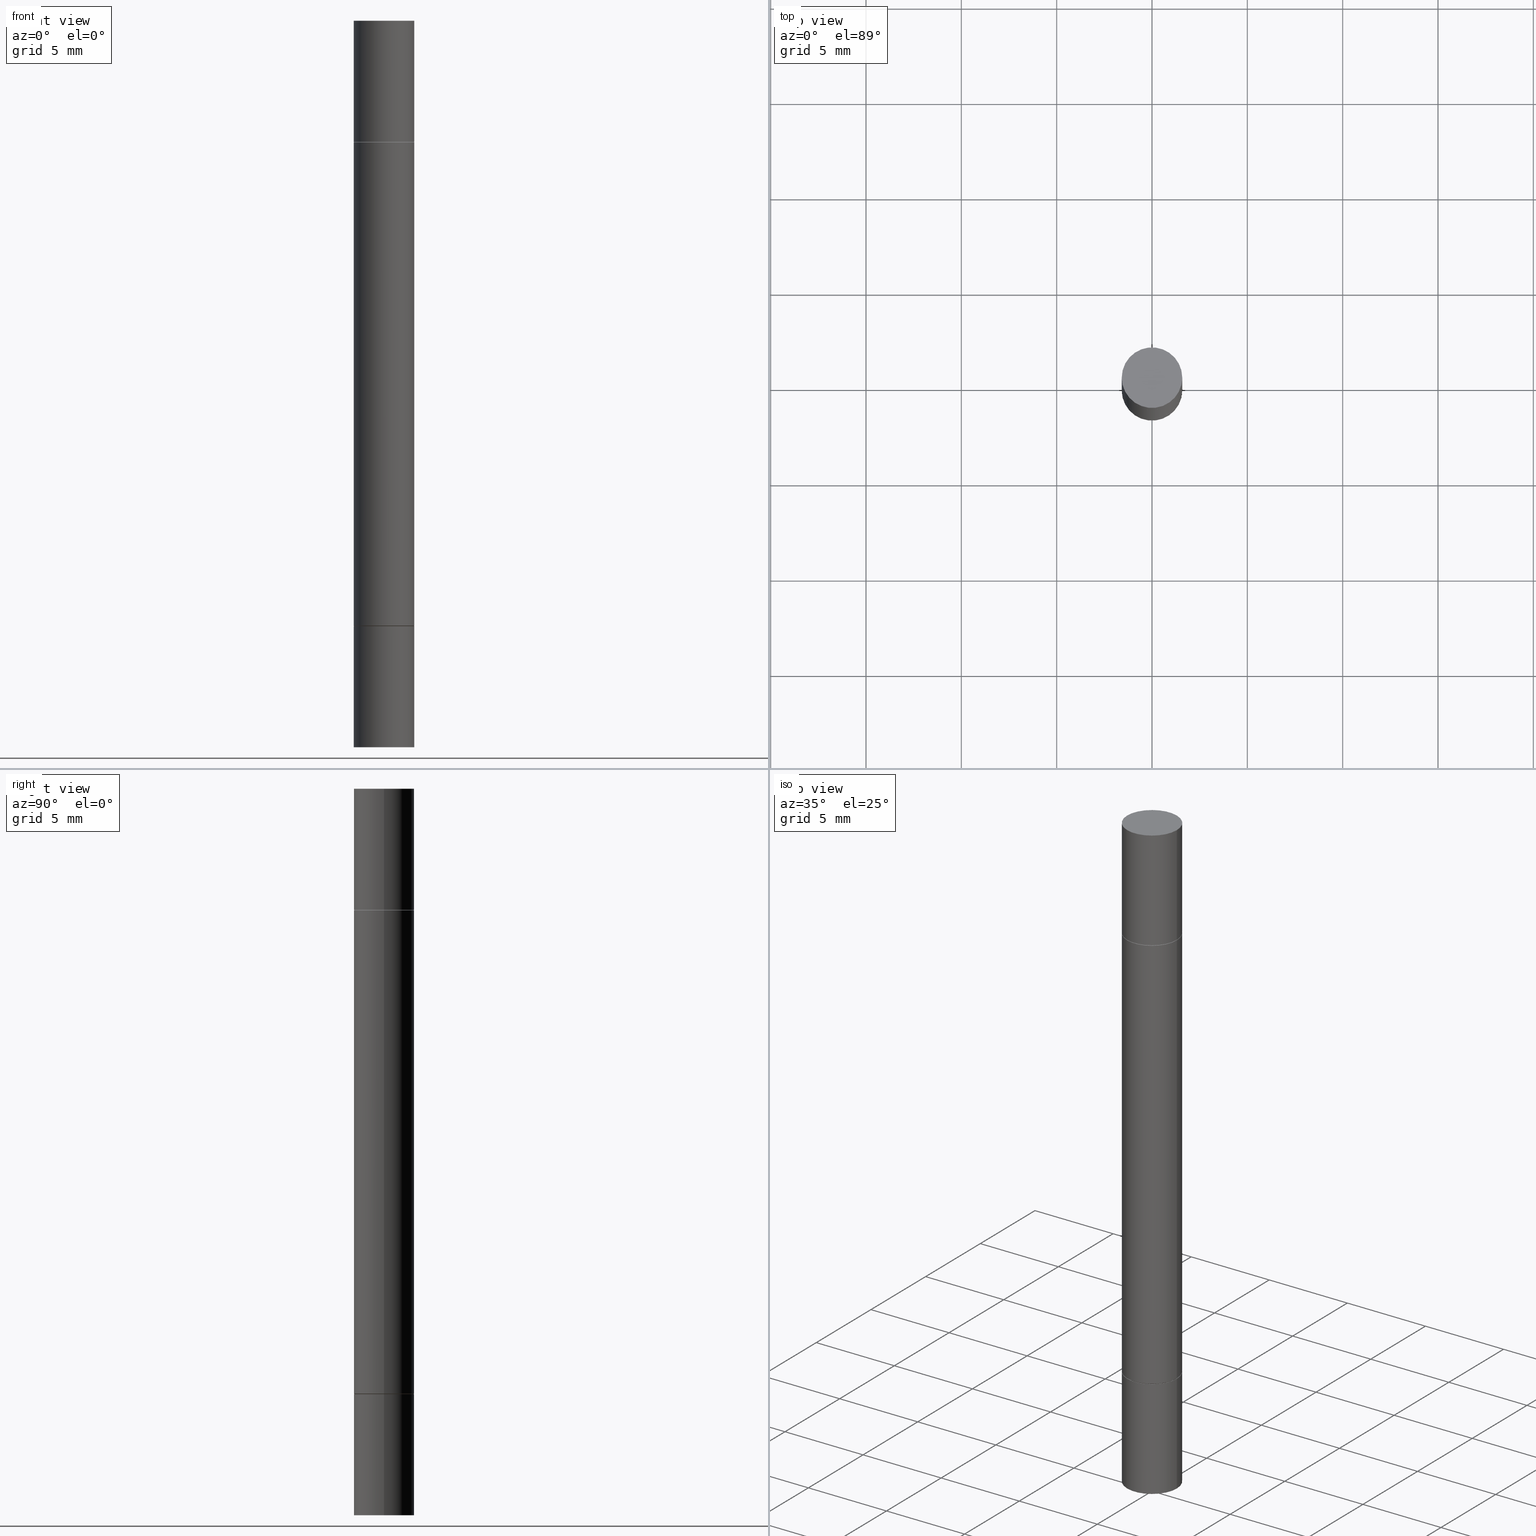
[diagram: canonical four-view strip — front | top / right | iso, engineering-drawing reading convention]
A machine part, canonical four-view strip (front | top / right | iso — engineering-drawing reading convention). The complete STEP part file that produces these views, byte-faithful:
ISO-10303-21;
HEADER;
FILE_DESCRIPTION (( 'STEP AP203' ),
    '1' );
FILE_NAME ('31513.STEP',
    '2024-03-04T15:42:23',
    ( '' ),
    ( '' ),
    'SwSTEP 2.0',
    'SolidWorks 2023',
    '' );
FILE_SCHEMA (( 'CONFIG_CONTROL_DESIGN' ));
ENDSEC;

DATA;
#1 = CARTESIAN_POINT ( 'NONE',  ( 0.06150000000000001299, -1.301618003034187616E-15, -0.2499999999999998057 ) ) ;
#2 = PLANE ( 'NONE',  #371 ) ;
#3 = EDGE_CURVE ( 'NONE', #494, #337, #347, .T. ) ;
#4 = DIRECTION ( 'NONE',  ( 1.000000000000000000, -6.982962677686261189E-15, 0.000000000000000000 ) ) ;
#5 = ORIENTED_EDGE ( 'NONE', *, *, #157, .T. ) ;
#6 = CARTESIAN_POINT ( 'NONE',  ( 3.054390538925235704E-29, -8.756586887680336100E-16, -0.2509999999999998899 ) ) ;
#7 = CARTESIAN_POINT ( 'NONE',  ( -0.06249999999999996531, -4.809497687935452578E-15, -1.499999999999999778 ) ) ;
#8 = CARTESIAN_POINT ( 'NONE',  ( 0.000000000000000000, -5.238278812796173300E-15, -1.499999999999999778 ) ) ;
#9 = CARTESIAN_POINT ( 'NONE',  ( 0.06250000000000001388, -4.800786840909324141E-15, -1.250000000000000000 ) ) ;
#10 = ORIENTED_EDGE ( 'NONE', *, *, #671, .T. ) ;
#11 = CARTESIAN_POINT ( 'NONE',  ( 3.056836007731421306E-29, -4.364351673553932471E-15, -1.250000000000000000 ) ) ;
#12 = FACE_OUTER_BOUND ( 'NONE', #59, .T. ) ;
#13 = DIRECTION ( 'NONE',  ( 1.000000000000000000, -6.982962677686267499E-15, 0.000000000000000000 ) ) ;
#14 = CARTESIAN_POINT ( 'NONE',  ( 3.056836007731421306E-29, -4.364351673553932471E-15, -1.250000000000000000 ) ) ;
#15 = FACE_OUTER_BOUND ( 'NONE', #477, .T. ) ;
#16 = CARTESIAN_POINT ( 'NONE',  ( 0.06249999999999996531, -2.183570013805587378E-15, -0.7499999999999998890 ) ) ;
#17 = LOCAL_TIME ( 10, 42, 23.00000000000000000, #443 ) ;
#18 = PRODUCT_DEFINITION ( 'UNKNOWN', '', #629, #114 ) ;
#19 = CIRCLE ( 'NONE', #389, 0.06250000000000005551 ) ;
#20 = DIRECTION ( 'NONE',  ( 1.000000000000000000, -6.982962677686264344E-15, 0.000000000000000000 ) ) ;
#21 = DIRECTION ( 'NONE',  ( -2.445468806185136877E-29, -3.492890411551753071E-15, -1.000000000000000000 ) ) ;
#22 = LINE ( 'NONE', #621, #525 ) ;
#23 = ORIENTED_EDGE ( 'NONE', *, *, #214, .T. ) ;
#24 = APPROVAL_DATE_TIME ( #345, #390 ) ;
#25 = ORIENTED_EDGE ( 'NONE', *, *, #496, .T. ) ;
#26 = AXIS2_PLACEMENT_3D ( 'NONE', #586, #584, #326 ) ;
#27 = VECTOR ( 'NONE', #264, 39.37007874015748143 ) ;
#28 = PERSON_AND_ORGANIZATION ( #266, #609 ) ;
#29 = CARTESIAN_POINT ( 'NONE',  ( 3.668203209277704895E-29, 1.056804531456312920E-18, 2.731847993664263218E-16 ) ) ;
#30 = ORIENTED_EDGE ( 'NONE', *, *, #669, .F. ) ;
#31 = DIRECTION ( 'NONE',  ( -2.445468806185136597E-29, 3.491481338843145583E-15, 1.000000000000000000 ) ) ;
#32 = SECURITY_CLASSIFICATION_LEVEL ( 'unclassified' ) ;
#33 = DIRECTION ( 'NONE',  ( -2.445468806185136597E-29, -3.492890411551752677E-15, -1.000000000000000000 ) ) ;
#34 = EDGE_CURVE ( 'NONE', #662, #442, #437, .T. ) ;
#35 = CALENDAR_DATE ( 2024, 4, 3 ) ;
#36 = DIRECTION ( 'NONE',  ( 2.445468806185136597E-29, 3.492890411551752677E-15, 1.000000000000000000 ) ) ;
#37 = ADVANCED_FACE ( 'NONE', ( #123 ), #279, .T. ) ;
#38 = APPROVAL_PERSON_ORGANIZATION ( #302, #60, #351 ) ;
#39 = CARTESIAN_POINT ( 'NONE',  ( 1.834101604638852167E-29, -2.618611004132358694E-15, -0.7499999999999998890 ) ) ;
#40 = AXIS2_PLACEMENT_3D ( 'NONE', #641, #170, #481 ) ;
#41 = CONICAL_SURFACE ( 'NONE', #538, 0.06150000000000001299, 0.7853981633974311816 ) ;
#42 = CARTESIAN_POINT ( 'NONE',  ( 0.06250000000000001388, -1.308600965711874025E-15, -0.2499999999999998057 ) ) ;
#43 = ORIENTED_EDGE ( 'NONE', *, *, #217, .F. ) ;
#44 = CARTESIAN_POINT ( 'NONE',  ( -0.06250000000000005551, -4.468775639073129860E-16, -0.2509999999999998899 ) ) ;
#45 = ORIENTED_EDGE ( 'NONE', *, *, #220, .F. ) ;
#46 = CARTESIAN_POINT ( 'NONE',  ( 0.000000000000000000, -5.238278812796173300E-15, -1.499999999999999778 ) ) ;
#47 = ORIENTED_EDGE ( 'NONE', *, *, #110, .F. ) ;
#48 = CLOSED_SHELL ( 'NONE', ( #577, #653, #78, #52 ) ) ;
#49 = AXIS2_PLACEMENT_3D ( 'NONE', #356, #458, #454 ) ;
#50 = DIRECTION ( 'NONE',  ( -0.000000000000000000, -3.492185875197449130E-15, -1.000000000000000000 ) ) ;
#51 = ADVANCED_FACE ( 'NONE', ( #15 ), #549, .T. ) ;
#52 = ADVANCED_FACE ( 'NONE', ( #141 ), #560, .T. ) ;
#53 = DIRECTION ( 'NONE',  ( 1.000000000000000000, -6.982962677686264344E-15, 0.000000000000000000 ) ) ;
#54 = FACE_OUTER_BOUND ( 'NONE', #642, .T. ) ;
#55 = ORIENTED_EDGE ( 'NONE', *, *, #334, .T. ) ;
#56 = DIRECTION ( 'NONE',  ( 1.000000000000000000, -6.982962677686265922E-15, 9.839502134516470631E-33 ) ) ;
#57 = ADVANCED_FACE ( 'NONE', ( #179 ), #597, .T. ) ;
#58 = DIRECTION ( 'NONE',  ( -2.445468806185136877E-29, -3.492890411551753071E-15, -1.000000000000000000 ) ) ;
#59 = EDGE_LOOP ( 'NONE', ( #292, #446 ) ) ;
#60 = APPROVAL ( #396, 'UNSPECIFIED' ) ;
#61 = CARTESIAN_POINT ( 'NONE',  ( -0.06250000000000005551, -2.189829879271635210E-15, -1.248999999999999888 ) ) ;
#62 = EDGE_CURVE ( 'NONE', #91, #165, #22, .T. ) ;
#63 =( GEOMETRIC_REPRESENTATION_CONTEXT ( 3 ) GLOBAL_UNCERTAINTY_ASSIGNED_CONTEXT ( ( #226 ) ) GLOBAL_UNIT_ASSIGNED_CONTEXT ( ( #335, #112, #76 ) ) REPRESENTATION_CONTEXT ( 'NONE', 'WORKASPACE' ) );
#64 = LENGTH_MEASURE_WITH_UNIT ( LENGTH_MEASURE( 0.02539999999999999897 ), #127 );
#65 = AXIS2_PLACEMENT_3D ( 'NONE', #14, #531, #269 ) ;
#66 = CIRCLE ( 'NONE', #440, 0.06250000000000005551 ) ;
#67 = DIRECTION ( 'NONE',  ( 1.000000000000000000, -6.982962677686269077E-15, 0.000000000000000000 ) ) ;
#68 = LINE ( 'NONE', #174, #184 ) ;
#69 = ORIENTED_EDGE ( 'NONE', *, *, #322, .F. ) ;
#70 = ADVANCED_FACE ( 'NONE', ( #513 ), #568, .T. ) ;
#71 = DIRECTION ( 'NONE',  ( 2.445468806185136597E-29, 3.492890411551752677E-15, 1.000000000000000000 ) ) ;
#72 = ADVANCED_FACE ( 'NONE', ( #426 ), #587, .F. ) ;
#73 = FACE_OUTER_BOUND ( 'NONE', #536, .T. ) ;
#74 = CARTESIAN_POINT ( 'NONE',  ( -0.06150000000000001299, -4.502451714935327518E-16, -0.2499999999999998057 ) ) ;
#75 = DIRECTION ( 'NONE',  ( 2.438088387897959769E-29, 3.492890411551753071E-15, 1.000000000000000000 ) ) ;
#76 =( NAMED_UNIT ( * ) SI_UNIT ( $, .STERADIAN. ) SOLID_ANGLE_UNIT ( ) );
#77 = CIRCLE ( 'NONE', #502, 0.06150000000000001299 ) ;
#78 = ADVANCED_FACE ( 'NONE', ( #12 ), #459, .F. ) ;
#79 = ORIENTED_EDGE ( 'NONE', *, *, #303, .T. ) ;
#80 = DIRECTION ( 'NONE',  ( 1.000000000000000000, -6.982962677686268288E-15, 0.000000000000000000 ) ) ;
#81 = EDGE_CURVE ( 'NONE', #229, #574, #517, .T. ) ;
#82 = ADVANCED_FACE ( 'NONE', ( #313 ), #108, .T. ) ;
#83 = PERSON_AND_ORGANIZATION_ROLE ( 'creator' ) ;
#84 = FACE_OUTER_BOUND ( 'NONE', #163, .T. ) ;
#85 = ORIENTED_EDGE ( 'NONE', *, *, #312, .F. ) ;
#86 = CARTESIAN_POINT ( 'NONE',  ( 3.056836007731421306E-29, -8.721657983564820597E-16, -0.2499999999999998057 ) ) ;
#87 = DIRECTION ( 'NONE',  ( 1.000000000000000000, -6.982962677686269077E-15, 0.000000000000000000 ) ) ;
#88 = ORIENTED_EDGE ( 'NONE', *, *, #263, .F. ) ;
#89 = PLANE ( 'NONE',  #49 ) ;
#90 = ADVANCED_FACE ( 'NONE', ( #120 ), #492, .T. ) ;
#91 = VERTEX_POINT ( 'NONE', #423 ) ;
#92 = LINE ( 'NONE', #74, #468 ) ;
#93 = AXIS2_PLACEMENT_3D ( 'NONE', #528, #633, #4 ) ;
#94 = DIRECTION ( 'NONE',  ( -2.445468806185136597E-29, 3.491481338843145583E-15, 1.000000000000000000 ) ) ;
#95 = DIRECTION ( 'NONE',  ( -0.7071067811865353603, 7.493145998870309984E-15, 0.7071067811865595631 ) ) ;
#96 = CC_DESIGN_DATE_AND_TIME_ASSIGNMENT ( #239, #659, ( #101 ) ) ;
#97 = DIRECTION ( 'NONE',  ( 1.000000000000000000, -6.982962677686264344E-15, 0.000000000000000000 ) ) ;
#98 = ORIENTED_EDGE ( 'NONE', *, *, #344, .T. ) ;
#99 = DIRECTION ( 'NONE',  ( 2.445468806185136597E-29, 3.492890411551752677E-15, 1.000000000000000000 ) ) ;
#100 = CARTESIAN_POINT ( 'NONE',  ( 3.056836007731421306E-29, -4.364351673553932471E-15, -1.250000000000000000 ) ) ;
#101 = SECURITY_CLASSIFICATION ( '', '', #32 ) ;
#102 = CLOSED_SHELL ( 'NONE', ( #397, #37, #72, #375 ) ) ;
#103 = AXIS2_PLACEMENT_3D ( 'NONE', #413, #310, #495 ) ;
#104 = CYLINDRICAL_SURFACE ( 'NONE', #93, 0.06250000000000001388 ) ;
#105 = ORIENTED_EDGE ( 'NONE', *, *, #258, .F. ) ;
#106 = CARTESIAN_POINT ( 'NONE',  ( 3.056836007731421306E-29, -8.721657983564820597E-16, -0.2499999999999998057 ) ) ;
#107 = EDGE_CURVE ( 'NONE', #664, #448, #579, .T. ) ;
#108 = CYLINDRICAL_SURFACE ( 'NONE', #236, 0.06249999999999996531 ) ;
#109 = CARTESIAN_POINT ( 'NONE',  ( -0.06250000000000001388, -4.356697631059263102E-15, -1.500000000000000222 ) ) ;
#110 = EDGE_CURVE ( 'NONE', #672, #384, #284, .T. ) ;
#111 = PLANE ( 'NONE',  #200 ) ;
#112 =( NAMED_UNIT ( * ) PLANE_ANGLE_UNIT ( ) SI_UNIT ( $, .RADIAN. ) );
#113 = ORIENTED_EDGE ( 'NONE', *, *, #598, .F. ) ;
#114 = DESIGN_CONTEXT ( 'detailed design', #291, 'design' ) ;
#115 = DIRECTION ( 'NONE',  ( 1.000000000000000000, -6.982962677686261189E-15, 0.000000000000000000 ) ) ;
#116 = CARTESIAN_POINT ( 'NONE',  ( 4.364351673554222871E-16, 0.06249999999999914652, -0.2500000000000000555 ) ) ;
#117 = ADVANCED_FACE ( 'NONE', ( #376 ), #453, .T. ) ;
#118 = AXIS2_PLACEMENT_3D ( 'NONE', #476, #370, #539 ) ;
#119 = AXIS2_PLACEMENT_3D ( 'NONE', #252, #490, #20 ) ;
#120 = FACE_OUTER_BOUND ( 'NONE', #608, .T. ) ;
#121 = LINE ( 'NONE', #651, #316 ) ;
#122 = LINE ( 'NONE', #343, #581 ) ;
#123 = FACE_OUTER_BOUND ( 'NONE', #195, .T. ) ;
#124 = EDGE_LOOP ( 'NONE', ( #386, #354, #245, #79 ) ) ;
#125 = DIRECTION ( 'NONE',  ( 0.000000000000000000, 0.000000000000000000, 1.000000000000000000 ) ) ;
#126 = CARTESIAN_POINT ( 'NONE',  ( 0.000000000000000000, -5.238278812796173300E-15, -1.499999999999999778 ) ) ;
#127 =( LENGTH_UNIT ( ) NAMED_UNIT ( * ) SI_UNIT ( $, .METRE. ) );
#128 = AXIS2_PLACEMENT_3D ( 'NONE', #6, #527, #53 ) ;
#129 = EDGE_CURVE ( 'NONE', #209, #596, #250, .T. ) ;
#130 = EDGE_CURVE ( 'NONE', #448, #664, #149, .T. ) ;
#131 = VERTEX_POINT ( 'NONE', #61 ) ;
#132 = DIRECTION ( 'NONE',  ( 1.000000000000000000, -6.982962677686268288E-15, 0.000000000000000000 ) ) ;
#133 = PERSON_AND_ORGANIZATION_ROLE ( 'classification_officer' ) ;
#134 = EDGE_CURVE ( 'NONE', #404, #232, #422, .T. ) ;
#135 = DIRECTION ( 'NONE',  ( 0.7071067811865353603, -7.407546758114202791E-15, -0.7071067811865595631 ) ) ;
#136 = AXIS2_PLACEMENT_3D ( 'NONE', #379, #330, #280 ) ;
#137 = ORIENTED_EDGE ( 'NONE', *, *, #34, .T. ) ;
#138 = EDGE_LOOP ( 'NONE', ( #289, #186, #159, #176 ) ) ;
#139 = VECTOR ( 'NONE', #58, 39.37007874015748143 ) ;
#140 = ADVANCED_FACE ( 'NONE', ( #230 ), #380, .T. ) ;
#141 = FACE_OUTER_BOUND ( 'NONE', #680, .T. ) ;
#142 = PERSON_AND_ORGANIZATION ( #266, #609 ) ;
#143 = DIRECTION ( 'NONE',  ( 1.000000000000000000, -6.982962677686269077E-15, 0.000000000000000000 ) ) ;
#144 = APPROVAL_STATUS ( 'not_yet_approved' ) ;
#145 = DIRECTION ( 'NONE',  ( -2.445468806185136597E-29, -3.492890411551752677E-15, -1.000000000000000000 ) ) ;
#146 = ORIENTED_EDGE ( 'NONE', *, *, #110, .T. ) ;
#147 = CYLINDRICAL_SURFACE ( 'NONE', #103, 0.06250000000000001388 ) ;
#148 = CC_DESIGN_APPROVAL ( #631, ( #18 ) ) ;
#149 = CIRCLE ( 'NONE', #40, 0.06250000000000001388 ) ;
#150 = DIRECTION ( 'NONE',  ( -0.000000000000000000, -3.492185875197449130E-15, -1.000000000000000000 ) ) ;
#151 = CIRCLE ( 'NONE', #251, 0.06150000000000001299 ) ;
#152 = AXIS2_PLACEMENT_3D ( 'NONE', #585, #125, #324 ) ;
#153 = CYLINDRICAL_SURFACE ( 'NONE', #526, 0.06249999999999996531 ) ;
#154 = EDGE_CURVE ( 'NONE', #596, #209, #479, .T. ) ;
#155 = EDGE_CURVE ( 'NONE', #428, #574, #410, .T. ) ;
#156 = LINE ( 'NONE', #219, #601 ) ;
#157 = EDGE_CURVE ( 'NONE', #384, #448, #416, .T. ) ;
#158 = DIRECTION ( 'NONE',  ( -0.7071067811865353603, 2.381258160591140710E-15, -0.7071067811865595631 ) ) ;
#159 = ORIENTED_EDGE ( 'NONE', *, *, #34, .F. ) ;
#160 = FACE_OUTER_BOUND ( 'NONE', #340, .T. ) ;
#161 = EDGE_CURVE ( 'NONE', #494, #640, #427, .T. ) ;
#162 = CARTESIAN_POINT ( 'NONE',  ( 3.056836007731421306E-29, -8.721657983564820597E-16, -0.2499999999999998057 ) ) ;
#163 = EDGE_LOOP ( 'NONE', ( #240, #218 ) ) ;
#164 = CARTESIAN_POINT ( 'NONE',  ( 1.834101604638852167E-29, -2.618611004132358694E-15, -0.7499999999999998890 ) ) ;
#165 = VERTEX_POINT ( 'NONE', #234 ) ;
#166 = DIRECTION ( 'NONE',  ( 1.000000000000000000, -6.982962677686268288E-15, 0.000000000000000000 ) ) ;
#167 = ORIENTED_EDGE ( 'NONE', *, *, #155, .T. ) ;
#168 = MANIFOLD_SOLID_BREP ( 'Mirror1[3]', #102 ) ;
#169 = ORIENTED_EDGE ( 'NONE', *, *, #81, .F. ) ;
#170 = DIRECTION ( 'NONE',  ( -2.445468806185136597E-29, 3.491481338843145583E-15, 1.000000000000000000 ) ) ;
#171 = DIRECTION ( 'NONE',  ( 1.000000000000000000, -6.982962677686266711E-15, 0.000000000000000000 ) ) ;
#172 = EDGE_CURVE ( 'NONE', #275, #131, #66, .T. ) ;
#173 = ADVANCED_FACE ( 'NONE', ( #430 ), #2, .F. ) ;
#174 = CARTESIAN_POINT ( 'NONE',  ( 0.06250000000000001388, -5.674713980151564181E-15, -1.499999999999999778 ) ) ;
#175 = CIRCLE ( 'NONE', #128, 0.06250000000000005551 ) ;
#176 = ORIENTED_EDGE ( 'NONE', *, *, #344, .F. ) ;
#177 = CARTESIAN_POINT ( 'NONE',  ( 3.668203209277704895E-29, 1.056804531456312920E-18, 2.731847993664263218E-16 ) ) ;
#178 = MECHANICAL_CONTEXT ( 'NONE', #520, 'mechanical' ) ;
#179 = FACE_OUTER_BOUND ( 'NONE', #603, .T. ) ;
#180 = CARTESIAN_POINT ( 'NONE',  ( -0.06250000000000001388, -4.809497687935452578E-15, -1.499999999999999778 ) ) ;
#181 = EDGE_CURVE ( 'NONE', #574, #428, #175, .T. ) ;
#182 = EDGE_LOOP ( 'NONE', ( #487, #393, #511, #504 ) ) ;
#183 = APPROVAL_DATE_TIME ( #248, #631 ) ;
#184 = VECTOR ( 'NONE', #21, 39.37007874015748143 ) ;
#185 = AXIS2_PLACEMENT_3D ( 'NONE', #177, #71, #639 ) ;
#186 = ORIENTED_EDGE ( 'NONE', *, *, #312, .T. ) ;
#187 = CIRCLE ( 'NONE', #571, 0.06249999999999996531 ) ;
#188 = PERSON_AND_ORGANIZATION ( #266, #609 ) ;
#189 = CARTESIAN_POINT ( 'NONE',  ( 0.06250000000000005551, -4.797295359570480345E-15, -1.248999999999999888 ) ) ;
#190 = ORIENTED_EDGE ( 'NONE', *, *, #542, .F. ) ;
#191 = ORIENTED_EDGE ( 'NONE', *, *, #217, .T. ) ;
#192 = ORIENTED_EDGE ( 'NONE', *, *, #590, .T. ) ;
#193 = PERSON_AND_ORGANIZATION ( #266, #609 ) ;
#194 = DIRECTION ( 'NONE',  ( 1.000000000000000000, -6.982962677686267499E-15, 0.000000000000000000 ) ) ;
#195 = EDGE_LOOP ( 'NONE', ( #451, #192 ) ) ;
#196 = CALENDAR_DATE ( 2024, 4, 3 ) ;
#197 = DIRECTION ( 'NONE',  ( 1.000000000000000000, -6.982962677686269077E-15, 0.000000000000000000 ) ) ;
#198 = CC_DESIGN_SECURITY_CLASSIFICATION ( #101, ( #629 ) ) ;
#199 = AXIS2_PLACEMENT_3D ( 'NONE', #162, #227, #166 ) ;
#200 = AXIS2_PLACEMENT_3D ( 'NONE', #106, #320, #56 ) ;
#201 = CALENDAR_DATE ( 2024, 4, 3 ) ;
#202 = CARTESIAN_POINT ( 'NONE',  ( -0.06150000000000001299, -4.485613677004229182E-16, -0.2499999999999998057 ) ) ;
#203 = CARTESIAN_POINT ( 'NONE',  ( 4.364351673554222871E-16, 0.06249999999999565625, -1.250000000000000222 ) ) ;
#204 = ADVANCED_FACE ( 'NONE', ( #216 ), #111, .F. ) ;
#205 = DIRECTION ( 'NONE',  ( -2.445468806185136597E-29, -3.492890411551752677E-15, -1.000000000000000000 ) ) ;
#206 = EDGE_CURVE ( 'NONE', #374, #229, #151, .T. ) ;
#207 = ADVANCED_FACE ( 'NONE', ( #84 ), #89, .F. ) ;
#208 = DIRECTION ( 'NONE',  ( 1.000000000000000000, -6.982962677686261189E-15, 0.000000000000000000 ) ) ;
#209 = VERTEX_POINT ( 'NONE', #613 ) ;
#210 = ORIENTED_EDGE ( 'NONE', *, *, #341, .T. ) ;
#211 = ORIENTED_EDGE ( 'NONE', *, *, #652, .F. ) ;
#212 = DIRECTION ( 'NONE',  ( -1.000000000000000000, 6.982962677686265922E-15, -9.839502134516470631E-33 ) ) ;
#213 = CARTESIAN_POINT ( 'NONE',  ( 0.000000000000000000, 0.000000000000000000, -0.7499999999999998890 ) ) ;
#214 = EDGE_CURVE ( 'NONE', #672, #664, #281, .T. ) ;
#215 = ADVANCED_FACE ( 'NONE', ( #444 ), #41, .T. ) ;
#216 = FACE_OUTER_BOUND ( 'NONE', #522, .T. ) ;
#217 = EDGE_CURVE ( 'NONE', #420, #640, #455, .T. ) ;
#218 = ORIENTED_EDGE ( 'NONE', *, *, #377, .T. ) ;
#219 = CARTESIAN_POINT ( 'NONE',  ( 0.06249999999999996531, -5.674713980151564181E-15, -1.499999999999999778 ) ) ;
#220 = EDGE_CURVE ( 'NONE', #265, #559, #638, .T. ) ;
#221 = CARTESIAN_POINT ( 'NONE',  ( 3.056836007731421306E-29, -8.721657983564820597E-16, -0.2499999999999998057 ) ) ;
#222 = LOCAL_TIME ( 10, 42, 23.00000000000000000, #246 ) ;
#223 = ORIENTED_EDGE ( 'NONE', *, *, #652, .T. ) ;
#224 = AXIS2_PLACEMENT_3D ( 'NONE', #11, #425, #378 ) ;
#225 = CONICAL_SURFACE ( 'NONE', #550, 0.06150000000000001299, 0.7853981633974311816 ) ;
#226 = UNCERTAINTY_MEASURE_WITH_UNIT (LENGTH_MEASURE( 1.000000000000000082E-05 ), #335, 'distance_accuracy_value', 'NONE');
#227 = DIRECTION ( 'NONE',  ( -2.445468806185136597E-29, -3.492890411551752677E-15, -1.000000000000000000 ) ) ;
#228 = APPLICATION_PROTOCOL_DEFINITION ( 'international standard', 'config_control_design', 1994, #520 ) ;
#229 = VERTEX_POINT ( 'NONE', #202 ) ;
#230 = FACE_OUTER_BOUND ( 'NONE', #182, .T. ) ;
#231 = ADVANCED_FACE ( 'NONE', ( #565 ), #658, .T. ) ;
#232 = VERTEX_POINT ( 'NONE', #352 ) ;
#233 = DIRECTION ( 'NONE',  ( -2.445468806185136877E-29, -3.492890411551753071E-15, -1.000000000000000000 ) ) ;
#234 = CARTESIAN_POINT ( 'NONE',  ( -0.06250000000000001388, -6.773372051792008208E-18, -0.2499999999999998057 ) ) ;
#235 = CARTESIAN_POINT ( 'NONE',  ( 0.06250000000000005551, -1.312093856123426167E-15, -0.2509999999999998899 ) ) ;
#236 = AXIS2_PLACEMENT_3D ( 'NONE', #8, #272, #171 ) ;
#237 = VECTOR ( 'NONE', #488, 39.37007874015748854 ) ;
#238 = DIRECTION ( 'NONE',  ( -1.000000000000000000, 6.982962677686265922E-15, -4.876176775795935793E-29 ) ) ;
#239 = DATE_AND_TIME ( #196, #654 ) ;
#240 = ORIENTED_EDGE ( 'NONE', *, *, #206, .T. ) ;
#241 = DIRECTION ( 'NONE',  ( -2.445468806185136877E-29, -3.492890411551753071E-15, -1.000000000000000000 ) ) ;
#242 = VECTOR ( 'NONE', #241, 39.37007874015748143 ) ;
#243 = APPLICATION_PROTOCOL_DEFINITION ( 'international standard', 'config_control_design', 1994, #291 ) ;
#244 = CARTESIAN_POINT ( 'NONE',  ( 0.06250000000000001388, -4.364351673553918173E-16, 3.047610484872460571E-30 ) ) ;
#245 = ORIENTED_EDGE ( 'NONE', *, *, #618, .T. ) ;
#246 = COORDINATED_UNIVERSAL_TIME_OFFSET ( 5, 0, .BEHIND. ) ;
#247 = CARTESIAN_POINT ( 'NONE',  ( 0.06150000000000001299, -1.301618003034187616E-15, -0.2499999999999998057 ) ) ;
#248 = DATE_AND_TIME ( #355, #17 ) ;
#249 = DIRECTION ( 'NONE',  ( 1.000000000000000000, -6.982962677686269077E-15, 0.000000000000000000 ) ) ;
#250 = CIRCLE ( 'NONE', #339, 0.06250000000000001388 ) ;
#251 = AXIS2_PLACEMENT_3D ( 'NONE', #221, #323, #132 ) ;
#252 = CARTESIAN_POINT ( 'NONE',  ( 3.054390538925235704E-29, -4.360860192215088675E-15, -1.248999999999999888 ) ) ;
#253 = EDGE_CURVE ( 'NONE', #131, #275, #493, .T. ) ;
#254 = PRODUCT_RELATED_PRODUCT_CATEGORY ( 'detail', '', ( #366 ) ) ;
#255 = EDGE_LOOP ( 'NONE', ( #667, #470, #457, #211 ) ) ;
#256 = DIRECTION ( 'NONE',  ( 1.000000000000000000, -6.982962677686268288E-15, 0.000000000000000000 ) ) ;
#257 = LINE ( 'NONE', #464, #382 ) ;
#258 = EDGE_CURVE ( 'NONE', #337, #420, #92, .T. ) ;
#259 = AXIS2_PLACEMENT_3D ( 'NONE', #39, #150, #595 ) ;
#260 = CIRCLE ( 'NONE', #655, 0.06250000000000001388 ) ;
#261 = PRODUCT_DEFINITION_SHAPE ( 'NONE', 'NONE',  #18 ) ;
#262 = CARTESIAN_POINT ( 'NONE',  ( -0.06250000000000005551, -4.468775639073129860E-16, -0.2509999999999998899 ) ) ;
#263 = EDGE_CURVE ( 'NONE', #640, #275, #306, .T. ) ;
#264 = DIRECTION ( 'NONE',  ( -2.445468806185136877E-29, 3.491481338843145188E-15, 1.000000000000000000 ) ) ;
#265 = VERTEX_POINT ( 'NONE', #42 ) ;
#266 = PERSON ( 'UNSPECIFIED', 'UNSPECIFIED', 'UNSPECIFIED', ('UNSPECIFIED'), ('UNSPECIFIED'), ('UNSPECIFIED') ) ;
#267 = DIRECTION ( 'NONE',  ( -2.445468806185136597E-29, -3.492890411551752677E-15, -1.000000000000000000 ) ) ;
#268 = ORIENTED_EDGE ( 'NONE', *, *, #645, .T. ) ;
#269 = DIRECTION ( 'NONE',  ( 1.000000000000000000, -6.982962677686268288E-15, 0.000000000000000000 ) ) ;
#270 = ORIENTED_EDGE ( 'NONE', *, *, #206, .F. ) ;
#271 = DIRECTION ( 'NONE',  ( -2.445468806185136877E-29, -3.492890411551753071E-15, -1.000000000000000000 ) ) ;
#272 = DIRECTION ( 'NONE',  ( -2.445468806185136597E-29, -3.492890411551752677E-15, -1.000000000000000000 ) ) ;
#273 = VECTOR ( 'NONE', #233, 39.37007874015748143 ) ;
#274 = DIRECTION ( 'NONE',  ( 2.445468806185136597E-29, 3.492890411551752677E-15, 1.000000000000000000 ) ) ;
#275 = VERTEX_POINT ( 'NONE', #189 ) ;
#276 = DIRECTION ( 'NONE',  ( -2.445468806185136597E-29, 3.491481338843145583E-15, 1.000000000000000000 ) ) ;
#277 = CARTESIAN_POINT ( 'NONE',  ( 0.06150000000000001299, -4.793803878231638126E-15, -1.250000000000000000 ) ) ;
#278 = CARTESIAN_POINT ( 'NONE',  ( 0.06150000000000001299, -1.301618003034187616E-15, -0.2499999999999998057 ) ) ;
#279 = PLANE ( 'NONE',  #432 ) ;
#280 = DIRECTION ( 'NONE',  ( 1.000000000000000000, -6.982962677686261189E-15, 0.000000000000000000 ) ) ;
#281 = LINE ( 'NONE', #244, #318 ) ;
#282 = EDGE_CURVE ( 'NONE', #559, #265, #627, .T. ) ;
#283 = FACE_OUTER_BOUND ( 'NONE', #554, .T. ) ;
#284 = CIRCLE ( 'NONE', #514, 0.06250000000000001388 ) ;
#285 = AXIS2_PLACEMENT_3D ( 'NONE', #300, #450, #399 ) ;
#286 = DIRECTION ( 'NONE',  ( 1.000000000000000000, -6.982962677686261189E-15, 0.000000000000000000 ) ) ;
#287 = ADVANCED_FACE ( 'NONE', ( #604 ), #225, .T. ) ;
#288 = ORIENTED_EDGE ( 'NONE', *, *, #134, .T. ) ;
#289 = ORIENTED_EDGE ( 'NONE', *, *, #181, .F. ) ;
#290 = DIRECTION ( 'NONE',  ( 2.438088387897960049E-29, -3.491481338843145188E-15, -1.000000000000000000 ) ) ;
#291 = APPLICATION_CONTEXT ( 'configuration controlled 3d designs of mechanical parts and assemblies' ) ;
#292 = ORIENTED_EDGE ( 'NONE', *, *, #107, .T. ) ;
#293 = EDGE_LOOP ( 'NONE', ( #146, #5, #637, #675 ) ) ;
#294 = APPROVAL_STATUS ( 'not_yet_approved' ) ;
#295 = ORIENTED_EDGE ( 'NONE', *, *, #377, .F. ) ;
#296 = PERSON_AND_ORGANIZATION_ROLE ( 'creator' ) ;
#297 = LOCAL_TIME ( 10, 42, 23.00000000000000000, #501 ) ;
#298 = CARTESIAN_POINT ( 'NONE',  ( 3.056836007731421306E-29, -8.721657983564820597E-16, -0.2499999999999998057 ) ) ;
#299 = CARTESIAN_POINT ( 'NONE',  ( 0.000000000000000000, 0.000000000000000000, 0.000000000000000000 ) ) ;
#300 = CARTESIAN_POINT ( 'NONE',  ( 3.056836007731421306E-29, -4.364351673553932471E-15, -1.250000000000000000 ) ) ;
#301 = ORIENTED_EDGE ( 'NONE', *, *, #341, .F. ) ;
#302 = PERSON_AND_ORGANIZATION ( #266, #609 ) ;
#303 = EDGE_CURVE ( 'NONE', #421, #165, #424, .T. ) ;
#304 = DIRECTION ( 'NONE',  ( -0.7071067811865353603, 2.381258160591140710E-15, -0.7071067811865595631 ) ) ;
#305 = VECTOR ( 'NONE', #497, 39.37007874015748854 ) ;
#306 = LINE ( 'NONE', #515, #242 ) ;
#307 = MANIFOLD_SOLID_BREP ( 'Mirror1[4]', #480 ) ;
#308 = AXIS2_PLACEMENT_3D ( 'NONE', #666, #348, #617 ) ;
#309 = DIRECTION ( 'NONE',  ( 1.000000000000000000, -6.982962677686268288E-15, 0.000000000000000000 ) ) ;
#310 = DIRECTION ( 'NONE',  ( -2.445468806185136597E-29, 3.491481338843145583E-15, 1.000000000000000000 ) ) ;
#311 = CARTESIAN_POINT ( 'NONE',  ( 0.000000000000000000, -5.238278812796173300E-15, -1.499999999999999778 ) ) ;
#312 = EDGE_CURVE ( 'NONE', #574, #442, #122, .T. ) ;
#313 = FACE_OUTER_BOUND ( 'NONE', #625, .T. ) ;
#314 = CARTESIAN_POINT ( 'NONE',  ( 0.06250000000000001388, -1.308600965711874025E-15, -0.2499999999999998057 ) ) ;
#315 = ORIENTED_EDGE ( 'NONE', *, *, #81, .T. ) ;
#316 = VECTOR ( 'NONE', #429, 39.37007874015748143 ) ;
#317 = DIRECTION ( 'NONE',  ( 1.000000000000000000, -6.982962677686265922E-15, 4.876176775795935793E-29 ) ) ;
#318 = VECTOR ( 'NONE', #402, 39.37007874015748143 ) ;
#319 = CARTESIAN_POINT ( 'NONE',  ( -0.06249999999999996531, -1.318353721589475380E-15, -0.7499999999999998890 ) ) ;
#320 = DIRECTION ( 'NONE',  ( -2.438088387897959769E-29, -3.492890411551753071E-15, -1.000000000000000000 ) ) ;
#321 = CARTESIAN_POINT ( 'NONE',  ( 0.06250000000000005551, -1.312093856123426167E-15, -0.2509999999999998899 ) ) ;
#322 = EDGE_CURVE ( 'NONE', #165, #421, #260, .T. ) ;
#323 = DIRECTION ( 'NONE',  ( 2.445468806185136597E-29, 3.492890411551752677E-15, 1.000000000000000000 ) ) ;
#324 = DIRECTION ( 'NONE',  ( 1.000000000000000000, 0.000000000000000000, 0.000000000000000000 ) ) ;
#325 = ORIENTED_EDGE ( 'NONE', *, *, #3, .F. ) ;
#326 = DIRECTION ( 'NONE',  ( 1.000000000000000000, -6.982962677686266711E-15, 0.000000000000000000 ) ) ;
#327 = AXIS2_PLACEMENT_3D ( 'NONE', #100, #484, #67 ) ;
#328 = DIRECTION ( 'NONE',  ( 2.438088387897959769E-29, 3.492890411551753071E-15, 1.000000000000000000 ) ) ;
#329 = AXIS2_PLACEMENT_3D ( 'NONE', #545, #36, #249 ) ;
#330 = DIRECTION ( 'NONE',  ( -2.445468806185136597E-29, 3.491481338843145583E-15, 1.000000000000000000 ) ) ;
#331 = CARTESIAN_POINT ( 'NONE',  ( 3.668203209277704895E-29, -5.237222008264718177E-15, -1.500000000000000222 ) ) ;
#332 = EDGE_CURVE ( 'NONE', #365, #91, #516, .T. ) ;
#333 = CARTESIAN_POINT ( 'NONE',  ( 3.056836007731421306E-29, -8.721657983564820597E-16, -0.2499999999999998057 ) ) ;
#334 = EDGE_CURVE ( 'NONE', #374, #428, #607, .T. ) ;
#335 =( CONVERSION_BASED_UNIT ( 'INCH', #64 ) LENGTH_UNIT ( ) NAMED_UNIT ( #403 ) );
#336 = DIRECTION ( 'NONE',  ( -2.445468806185136597E-29, -3.492890411551752677E-15, -1.000000000000000000 ) ) ;
#337 = VERTEX_POINT ( 'NONE', #558 ) ;
#338 = PLANE ( 'NONE',  #431 ) ;
#339 = AXIS2_PLACEMENT_3D ( 'NONE', #543, #650, #646 ) ;
#340 = EDGE_LOOP ( 'NONE', ( #137, #500 ) ) ;
#341 = EDGE_CURVE ( 'NONE', #232, #404, #411, .T. ) ;
#342 = APPROVAL_ROLE ( '' ) ;
#343 = CARTESIAN_POINT ( 'NONE',  ( -0.06249999999999996531, -4.809497687935452578E-15, -1.499999999999999778 ) ) ;
#344 = EDGE_CURVE ( 'NONE', #428, #662, #156, .T. ) ;
#345 = DATE_AND_TIME ( #436, #297 ) ;
#346 = CIRCLE ( 'NONE', #136, 0.06250000000000001388 ) ;
#347 = CIRCLE ( 'NONE', #398, 0.06150000000000001299 ) ;
#348 = DIRECTION ( 'NONE',  ( 2.445468806185136597E-29, 3.492890411551752677E-15, 1.000000000000000000 ) ) ;
#349 = AXIS2_PLACEMENT_3D ( 'NONE', #213, #578, #583 ) ;
#350 = ORIENTED_EDGE ( 'NONE', *, *, #154, .F. ) ;
#351 = APPROVAL_ROLE ( '' ) ;
#352 = CARTESIAN_POINT ( 'NONE',  ( 0.06150000000000001299, -4.793803878231638126E-15, -1.250000000000000000 ) ) ;
#353 = DIRECTION ( 'NONE',  ( 1.000000000000000000, -6.982962677686268288E-15, 0.000000000000000000 ) ) ;
#354 = ORIENTED_EDGE ( 'NONE', *, *, #332, .F. ) ;
#355 = CALENDAR_DATE ( 2024, 4, 3 ) ;
#356 = CARTESIAN_POINT ( 'NONE',  ( 3.056836007731421306E-29, -8.721657983564820597E-16, -0.2499999999999998057 ) ) ;
#357 = DIRECTION ( 'NONE',  ( -1.000000000000000000, 6.982962677686265922E-15, -4.876176775795935793E-29 ) ) ;
#358 = CARTESIAN_POINT ( 'NONE',  ( 3.056836007731421306E-29, -4.364351673553932471E-15, -1.250000000000000000 ) ) ;
#359 = DIRECTION ( 'NONE',  ( 1.000000000000000000, -6.982962677686261189E-15, 0.000000000000000000 ) ) ;
#360 = CLOSED_SHELL ( 'NONE', ( #561, #90, #415, #207, #51, #231 ) ) ;
#361 = AXIS2_PLACEMENT_3D ( 'NONE', #333, #562, #143 ) ;
#362 = CARTESIAN_POINT ( 'NONE',  ( 3.056836007731421306E-29, -8.721657983564820597E-16, -0.2499999999999998057 ) ) ;
#363 = EDGE_LOOP ( 'NONE', ( #105, #325, #417, #499 ) ) ;
#364 = CARTESIAN_POINT ( 'NONE',  ( 0.06250000000000001388, -4.353783628239354613E-16, 2.731847993664263218E-16 ) ) ;
#365 = VERTEX_POINT ( 'NONE', #364 ) ;
#366 = PRODUCT ( '31513', '31513', '', ( #178 ) ) ;
#367 = DIRECTION ( 'NONE',  ( 2.445468806185136597E-29, 3.492890411551752677E-15, 1.000000000000000000 ) ) ;
#368 = EDGE_LOOP ( 'NONE', ( #85, #563, #98, #190 ) ) ;
#369 = AXIS2_PLACEMENT_3D ( 'NONE', #299, #31, #548 ) ;
#370 = DIRECTION ( 'NONE',  ( 2.445468806185136597E-29, 3.492890411551752677E-15, 1.000000000000000000 ) ) ;
#371 = AXIS2_PLACEMENT_3D ( 'NONE', #534, #385, #317 ) ;
#372 = PLANE ( 'NONE',  #349 ) ;
#373 = EDGE_LOOP ( 'NONE', ( #301, #485 ) ) ;
#374 = VERTEX_POINT ( 'NONE', #419 ) ;
#375 = ADVANCED_FACE ( 'NONE', ( #573 ), #674, .T. ) ;
#376 = FACE_OUTER_BOUND ( 'NONE', #445, .T. ) ;
#377 = EDGE_CURVE ( 'NONE', #229, #374, #77, .T. ) ;
#378 = DIRECTION ( 'NONE',  ( 1.000000000000000000, -6.982962677686268288E-15, 0.000000000000000000 ) ) ;
#379 = CARTESIAN_POINT ( 'NONE',  ( 3.668203209277704895E-29, -5.237222008264718177E-15, -1.500000000000000222 ) ) ;
#380 = CYLINDRICAL_SURFACE ( 'NONE', #26, 0.06249999999999996531 ) ;
#381 = AXIS2_PLACEMENT_3D ( 'NONE', #86, #447, #663 ) ;
#382 = VECTOR ( 'NONE', #95, 39.37007874015748854 ) ;
#383 = CARTESIAN_POINT ( 'NONE',  ( 3.056836007731421306E-29, -8.721657983564820597E-16, -0.2499999999999998057 ) ) ;
#384 = VERTEX_POINT ( 'NONE', #109 ) ;
#385 = DIRECTION ( 'NONE',  ( -2.438088387897960049E-29, 3.491481338843145188E-15, 1.000000000000000000 ) ) ;
#386 = ORIENTED_EDGE ( 'NONE', *, *, #62, .F. ) ;
#387 = DIRECTION ( 'NONE',  ( -1.000000000000000000, 6.982962677686265922E-15, -9.839502134516470631E-33 ) ) ;
#388 = CARTESIAN_POINT ( 'NONE',  ( 0.06250000000000001388, -4.353783628239354613E-16, 2.731847993664263218E-16 ) ) ;
#389 = AXIS2_PLACEMENT_3D ( 'NONE', #679, #367, #97 ) ;
#390 = APPROVAL ( #294, 'UNSPECIFIED' ) ;
#391 = DIRECTION ( 'NONE',  ( 1.000000000000000000, -6.982962677686266711E-15, 0.000000000000000000 ) ) ;
#392 = ORIENTED_EDGE ( 'NONE', *, *, #129, .T. ) ;
#393 = ORIENTED_EDGE ( 'NONE', *, *, #465, .F. ) ;
#394 = DATE_AND_TIME ( #35, #222 ) ;
#395 = CARTESIAN_POINT ( 'NONE',  ( 0.000000000000000000, -5.238278812796173300E-15, -1.499999999999999778 ) ) ;
#396 = APPROVAL_STATUS ( 'not_yet_approved' ) ;
#397 = ADVANCED_FACE ( 'NONE', ( #460 ), #104, .T. ) ;
#398 = AXIS2_PLACEMENT_3D ( 'NONE', #409, #614, #353 ) ;
#399 = DIRECTION ( 'NONE',  ( 1.000000000000000000, -6.982962677686268288E-15, 0.000000000000000000 ) ) ;
#400 = MANIFOLD_SOLID_BREP ( 'Body-Move/Copy2[1]', #48 ) ;
#401 = PERSON_AND_ORGANIZATION_ROLE ( 'design_supplier' ) ;
#402 = DIRECTION ( 'NONE',  ( -2.445468806185136877E-29, 3.491481338843145188E-15, 1.000000000000000000 ) ) ;
#403 = DIMENSIONAL_EXPONENTS ( 1.000000000000000000, 0.000000000000000000, 0.000000000000000000, 0.000000000000000000, 0.000000000000000000, 0.000000000000000000, 0.000000000000000000 ) ;
#404 = VERTEX_POINT ( 'NONE', #533 ) ;
#405 = CARTESIAN_POINT ( 'NONE',  ( -0.06250000000000001388, -6.773372051792008208E-18, -0.2499999999999998057 ) ) ;
#406 = ORIENTED_EDGE ( 'NONE', *, *, #181, .T. ) ;
#407 = DIRECTION ( 'NONE',  ( -2.445468806185136877E-29, -3.492890411551753071E-15, -1.000000000000000000 ) ) ;
#408 = PLANE ( 'NONE',  #482 ) ;
#409 = CARTESIAN_POINT ( 'NONE',  ( 3.056836007731421306E-29, -8.721657983564820597E-16, -0.2499999999999998057 ) ) ;
#410 = CIRCLE ( 'NONE', #118, 0.06250000000000005551 ) ;
#411 = CIRCLE ( 'NONE', #285, 0.06150000000000001299 ) ;
#412 = LINE ( 'NONE', #7, #139 ) ;
#413 = CARTESIAN_POINT ( 'NONE',  ( 0.000000000000000000, 0.000000000000000000, 0.000000000000000000 ) ) ;
#414 = ORIENTED_EDGE ( 'NONE', *, *, #334, .F. ) ;
#415 = ADVANCED_FACE ( 'NONE', ( #160 ), #372, .F. ) ;
#416 = LINE ( 'NONE', #634, #27 ) ;
#417 = ORIENTED_EDGE ( 'NONE', *, *, #161, .T. ) ;
#418 = ORIENTED_EDGE ( 'NONE', *, *, #671, .F. ) ;
#419 = CARTESIAN_POINT ( 'NONE',  ( 0.06150000000000001299, -1.301618003034187616E-15, -0.2499999999999998057 ) ) ;
#420 = VERTEX_POINT ( 'NONE', #44 ) ;
#421 = VERTEX_POINT ( 'NONE', #314 ) ;
#422 = CIRCLE ( 'NONE', #224, 0.06150000000000001299 ) ;
#423 = CARTESIAN_POINT ( 'NONE',  ( -0.06250000000000001388, -6.773372051792008208E-18, 2.731847993664278996E-16 ) ) ;
#424 = CIRCLE ( 'NONE', #329, 0.06250000000000001388 ) ;
#425 = DIRECTION ( 'NONE',  ( -2.445468806185136597E-29, 3.491481338843145583E-15, 1.000000000000000000 ) ) ;
#426 = FACE_OUTER_BOUND ( 'NONE', #656, .T. ) ;
#427 = LINE ( 'NONE', #278, #237 ) ;
#428 = VERTEX_POINT ( 'NONE', #321 ) ;
#429 = DIRECTION ( 'NONE',  ( -2.445468806185136877E-29, -3.492890411551753071E-15, -1.000000000000000000 ) ) ;
#430 = FACE_OUTER_BOUND ( 'NONE', #373, .T. ) ;
#431 = AXIS2_PLACEMENT_3D ( 'NONE', #486, #290, #238 ) ;
#432 = AXIS2_PLACEMENT_3D ( 'NONE', #546, #75, #489 ) ;
#433 = AXIS2_PLACEMENT_3D ( 'NONE', #441, #673, #197 ) ;
#434 = ORIENTED_EDGE ( 'NONE', *, *, #130, .F. ) ;
#435 = CARTESIAN_POINT ( 'NONE',  ( 0.06250000000000001388, -5.673657175620109846E-15, -1.500000000000000222 ) ) ;
#436 = CALENDAR_DATE ( 2024, 4, 3 ) ;
#437 = CIRCLE ( 'NONE', #259, 0.06249999999999996531 ) ;
#438 = CC_DESIGN_PERSON_AND_ORGANIZATION_ASSIGNMENT ( #142, #83, ( #18 ) ) ;
#439 = ORIENTED_EDGE ( 'NONE', *, *, #567, .F. ) ;
#440 = AXIS2_PLACEMENT_3D ( 'NONE', #593, #276, #582 ) ;
#441 = CARTESIAN_POINT ( 'NONE',  ( 3.056836007731421306E-29, -8.721657983564820597E-16, -0.2499999999999998057 ) ) ;
#442 = VERTEX_POINT ( 'NONE', #319 ) ;
#443 = COORDINATED_UNIVERSAL_TIME_OFFSET ( 5, 0, .BEHIND. ) ;
#444 = FACE_OUTER_BOUND ( 'NONE', #580, .T. ) ;
#445 = EDGE_LOOP ( 'NONE', ( #210, #456, #475, #530 ) ) ;
#446 = ORIENTED_EDGE ( 'NONE', *, *, #130, .T. ) ;
#447 = DIRECTION ( 'NONE',  ( -2.445468806185136597E-29, -3.492890411551752677E-15, -1.000000000000000000 ) ) ;
#448 = VERTEX_POINT ( 'NONE', #524 ) ;
#449 = PERSON_AND_ORGANIZATION ( #266, #609 ) ;
#450 = DIRECTION ( 'NONE',  ( -2.445468806185136597E-29, 3.491481338843145583E-15, 1.000000000000000000 ) ) ;
#451 = ORIENTED_EDGE ( 'NONE', *, *, #332, .T. ) ;
#452 = APPROVAL_ROLE ( '' ) ;
#453 = CONICAL_SURFACE ( 'NONE', #65, 0.06150000000000001299, 0.7853981633974311816 ) ;
#454 = DIRECTION ( 'NONE',  ( 1.000000000000000000, -6.982962677686265922E-15, 9.839502134516470631E-33 ) ) ;
#455 = CIRCLE ( 'NONE', #308, 0.06250000000000005551 ) ;
#456 = ORIENTED_EDGE ( 'NONE', *, *, #567, .T. ) ;
#457 = ORIENTED_EDGE ( 'NONE', *, *, #282, .T. ) ;
#458 = DIRECTION ( 'NONE',  ( -2.438088387897959769E-29, -3.492890411551753071E-15, -1.000000000000000000 ) ) ;
#459 = PLANE ( 'NONE',  #467 ) ;
#460 = FACE_OUTER_BOUND ( 'NONE', #676, .T. ) ;
#461 = ORIENTED_EDGE ( 'NONE', *, *, #253, .F. ) ;
#462 = ORIENTED_EDGE ( 'NONE', *, *, #220, .T. ) ;
#463 = AXIS2_PLACEMENT_3D ( 'NONE', #383, #599, #80 ) ;
#464 = CARTESIAN_POINT ( 'NONE',  ( -0.06150000000000001299, -3.927367891061470863E-15, -1.250000000000000000 ) ) ;
#465 = EDGE_CURVE ( 'NONE', #640, #420, #19, .T. ) ;
#466 = ADVANCED_FACE ( 'NONE', ( #54 ), #408, .T. ) ;
#467 = AXIS2_PLACEMENT_3D ( 'NONE', #203, #623, #357 ) ;
#468 = VECTOR ( 'NONE', #304, 39.37007874015748854 ) ;
#469 = ORIENTED_EDGE ( 'NONE', *, *, #253, .T. ) ;
#470 = ORIENTED_EDGE ( 'NONE', *, *, #598, .T. ) ;
#471 = FACE_OUTER_BOUND ( 'NONE', #293, .T. ) ;
#472 = EDGE_LOOP ( 'NONE', ( #439, #288, #268, #461 ) ) ;
#473 = DIRECTION ( 'NONE',  ( -2.445468806185136597E-29, 3.491481338843145583E-15, 1.000000000000000000 ) ) ;
#474 = DIRECTION ( 'NONE',  ( -2.445468806185136597E-29, -3.492890411551752677E-15, -1.000000000000000000 ) ) ;
#475 = ORIENTED_EDGE ( 'NONE', *, *, #172, .F. ) ;
#476 = CARTESIAN_POINT ( 'NONE',  ( 3.054390538925235704E-29, -8.756586887680336100E-16, -0.2509999999999998899 ) ) ;
#477 = EDGE_LOOP ( 'NONE', ( #169, #270, #55, #167 ) ) ;
#478 = CARTESIAN_POINT ( 'NONE',  ( 4.364351673554284500E-16, 0.06250000000000001388, 0.000000000000000000 ) ) ;
#479 = CIRCLE ( 'NONE', #185, 0.06250000000000001388 ) ;
#480 = CLOSED_SHELL ( 'NONE', ( #532, #466, #661, #57 ) ) ;
#481 = DIRECTION ( 'NONE',  ( 1.000000000000000000, -6.982962677686269077E-15, 0.000000000000000000 ) ) ;
#482 = AXIS2_PLACEMENT_3D ( 'NONE', #478, #518, #212 ) ;
#483 = LINE ( 'NONE', #277, #305 ) ;
#484 = DIRECTION ( 'NONE',  ( -2.445468806185136597E-29, 3.491481338843145583E-15, 1.000000000000000000 ) ) ;
#485 = ORIENTED_EDGE ( 'NONE', *, *, #134, .F. ) ;
#486 = CARTESIAN_POINT ( 'NONE',  ( 4.364351673554284500E-16, 0.06249999999999478195, -1.500000000000000444 ) ) ;
#487 = ORIENTED_EDGE ( 'NONE', *, *, #496, .F. ) ;
#488 = DIRECTION ( 'NONE',  ( 0.7071067811865353603, -7.407546758114202791E-15, -0.7071067811865595631 ) ) ;
#489 = DIRECTION ( 'NONE',  ( -1.000000000000000000, 6.982962677686265922E-15, -9.839502134516470631E-33 ) ) ;
#490 = DIRECTION ( 'NONE',  ( -2.445468806185136597E-29, 3.491481338843145583E-15, 1.000000000000000000 ) ) ;
#491 = APPROVAL_PERSON_ORGANIZATION ( #188, #390, #452 ) ;
#492 = CONICAL_SURFACE ( 'NONE', #199, 0.06150000000000001299, 0.7853981633974311816 ) ;
#493 = CIRCLE ( 'NONE', #119, 0.06250000000000005551 ) ;
#494 = VERTEX_POINT ( 'NONE', #1 ) ;
#495 = DIRECTION ( 'NONE',  ( 1.000000000000000000, -6.982962677686267499E-15, 4.876176775795935793E-29 ) ) ;
#496 = EDGE_CURVE ( 'NONE', #420, #131, #412, .T. ) ;
#497 = DIRECTION ( 'NONE',  ( 0.7071067811865353603, -2.468850131082130054E-15, 0.7071067811865595631 ) ) ;
#498 = ORIENTED_EDGE ( 'NONE', *, *, #303, .F. ) ;
#499 = ORIENTED_EDGE ( 'NONE', *, *, #465, .T. ) ;
#500 = ORIENTED_EDGE ( 'NONE', *, *, #542, .T. ) ;
#501 = COORDINATED_UNIVERSAL_TIME_OFFSET ( 5, 0, .BEHIND. ) ;
#502 = AXIS2_PLACEMENT_3D ( 'NONE', #362, #99, #256 ) ;
#503 = DIRECTION ( 'NONE',  ( 2.445468806185136597E-29, 3.492890411551752677E-15, 1.000000000000000000 ) ) ;
#504 = ORIENTED_EDGE ( 'NONE', *, *, #172, .T. ) ;
#505 = COORDINATED_UNIVERSAL_TIME_OFFSET ( 5, 0, .BEHIND. ) ;
#506 = CC_DESIGN_PERSON_AND_ORGANIZATION_ASSIGNMENT ( #665, #133, ( #101 ) ) ;
#507 = DIRECTION ( 'NONE',  ( 1.000000000000000000, -6.982962677686268288E-15, 0.000000000000000000 ) ) ;
#508 = ORIENTED_EDGE ( 'NONE', *, *, #157, .F. ) ;
#509 = PERSON_AND_ORGANIZATION ( #266, #609 ) ;
#510 = CARTESIAN_POINT ( 'NONE',  ( 3.056836007731421306E-29, -8.721657983564820597E-16, -0.2499999999999998057 ) ) ;
#511 = ORIENTED_EDGE ( 'NONE', *, *, #263, .T. ) ;
#512 = APPROVAL_PERSON_ORGANIZATION ( #509, #631, #342 ) ;
#513 = FACE_OUTER_BOUND ( 'NONE', #472, .T. ) ;
#514 = AXIS2_PLACEMENT_3D ( 'NONE', #331, #473, #115 ) ;
#515 = CARTESIAN_POINT ( 'NONE',  ( 0.06249999999999996531, -5.674713980151564181E-15, -1.499999999999999778 ) ) ;
#516 = CIRCLE ( 'NONE', #649, 0.06250000000000001388 ) ;
#517 = LINE ( 'NONE', #566, #610 ) ;
#518 = DIRECTION ( 'NONE',  ( 2.438088387897959769E-29, 3.492890411551753071E-15, 1.000000000000000000 ) ) ;
#519 = CC_DESIGN_PERSON_AND_ORGANIZATION_ASSIGNMENT ( #193, #296, ( #629 ) ) ;
#520 = APPLICATION_CONTEXT ( 'configuration controlled 3d designs of mechanical parts and assemblies' ) ;
#521 = DIRECTION ( 'NONE',  ( 0.000000000000000000, 1.000000000000000000, -4.370956789862823516E-15 ) ) ;
#522 = EDGE_LOOP ( 'NONE', ( #632, #10 ) ) ;
#523 = CIRCLE ( 'NONE', #463, 0.06150000000000001299 ) ;
#524 = CARTESIAN_POINT ( 'NONE',  ( -0.06250000000000001388, -4.356697631059263102E-15, -1.250000000000000000 ) ) ;
#525 = VECTOR ( 'NONE', #407, 39.37007874015748143 ) ;
#526 = AXIS2_PLACEMENT_3D ( 'NONE', #46, #474, #570 ) ;
#527 = DIRECTION ( 'NONE',  ( 2.445468806185136597E-29, 3.492890411551752677E-15, 1.000000000000000000 ) ) ;
#528 = CARTESIAN_POINT ( 'NONE',  ( 0.000000000000000000, -5.238278812796173300E-15, -1.499999999999999778 ) ) ;
#529 = CC_DESIGN_DATE_AND_TIME_ASSIGNMENT ( #606, #552, ( #18 ) ) ;
#530 = ORIENTED_EDGE ( 'NONE', *, *, #645, .F. ) ;
#531 = DIRECTION ( 'NONE',  ( -2.445468806185136597E-29, 3.491481338843145583E-15, 1.000000000000000000 ) ) ;
#532 = ADVANCED_FACE ( 'NONE', ( #622 ), #628, .T. ) ;
#533 = CARTESIAN_POINT ( 'NONE',  ( -0.06150000000000001299, -3.922069436713247672E-15, -1.250000000000000000 ) ) ;
#534 = CARTESIAN_POINT ( 'NONE',  ( 3.056836007731421306E-29, -4.364351673553932471E-15, -1.250000000000000000 ) ) ;
#535 = LOCAL_TIME ( 10, 42, 23.00000000000000000, #505 ) ;
#536 = EDGE_LOOP ( 'NONE', ( #45, #602 ) ) ;
#537 = MANIFOLD_SOLID_BREP ( 'Combine1', #600 ) ;
#538 = AXIS2_PLACEMENT_3D ( 'NONE', #670, #145, #507 ) ;
#539 = DIRECTION ( 'NONE',  ( 1.000000000000000000, -6.982962677686264344E-15, 0.000000000000000000 ) ) ;
#540 = CC_DESIGN_APPROVAL ( #60, ( #629 ) ) ;
#541 = DIRECTION ( 'NONE',  ( -1.000000000000000000, 6.982962677686265922E-15, -9.839502134516470631E-33 ) ) ;
#542 = EDGE_CURVE ( 'NONE', #442, #662, #187, .T. ) ;
#543 = CARTESIAN_POINT ( 'NONE',  ( 3.668203209277704895E-29, 1.056804531456312920E-18, 2.731847993664263218E-16 ) ) ;
#544 = LINE ( 'NONE', #180, #273 ) ;
#545 = CARTESIAN_POINT ( 'NONE',  ( 3.056836007731421306E-29, -8.721657983564820597E-16, -0.2499999999999998057 ) ) ;
#546 = CARTESIAN_POINT ( 'NONE',  ( 4.364351673554284500E-16, 0.06250000000000001388, 0.000000000000000000 ) ) ;
#547 = PLANE ( 'NONE',  #555 ) ;
#548 = DIRECTION ( 'NONE',  ( 1.000000000000000000, -6.982962677686267499E-15, 4.876176775795935793E-29 ) ) ;
#549 = CONICAL_SURFACE ( 'NONE', #381, 0.06150000000000001299, 0.7853981633974311816 ) ;
#550 = AXIS2_PLACEMENT_3D ( 'NONE', #510, #33, #594 ) ;
#551 = ORIENTED_EDGE ( 'NONE', *, *, #258, .T. ) ;
#552 = DATE_TIME_ROLE ( 'creation_date' ) ;
#553 = DIRECTION ( 'NONE',  ( -2.445468806185136877E-29, -3.492890411551753071E-15, -1.000000000000000000 ) ) ;
#554 = EDGE_LOOP ( 'NONE', ( #47, #30 ) ) ;
#555 = AXIS2_PLACEMENT_3D ( 'NONE', #643, #589, #387 ) ;
#556 = SHAPE_DEFINITION_REPRESENTATION ( #261, #657 ) ;
#557 = AXIS2_PLACEMENT_3D ( 'NONE', #395, #205, #391 ) ;
#558 = CARTESIAN_POINT ( 'NONE',  ( -0.06150000000000001299, -4.485613677004229182E-16, -0.2499999999999998057 ) ) ;
#559 = VERTEX_POINT ( 'NONE', #405 ) ;
#560 = CYLINDRICAL_SURFACE ( 'NONE', #369, 0.06250000000000001388 ) ;
#561 = ADVANCED_FACE ( 'NONE', ( #630 ), #153, .T. ) ;
#562 = DIRECTION ( 'NONE',  ( 2.445468806185136597E-29, 3.492890411551752677E-15, 1.000000000000000000 ) ) ;
#563 = ORIENTED_EDGE ( 'NONE', *, *, #155, .F. ) ;
#564 = APPROVAL_DATE_TIME ( #394, #60 ) ;
#565 = FACE_OUTER_BOUND ( 'NONE', #368, .T. ) ;
#566 = CARTESIAN_POINT ( 'NONE',  ( -0.06150000000000001299, -4.502451714935327518E-16, -0.2499999999999998057 ) ) ;
#567 = EDGE_CURVE ( 'NONE', #404, #131, #257, .T. ) ;
#568 = CONICAL_SURFACE ( 'NONE', #677, 0.06150000000000001299, 0.7853981633974311816 ) ;
#569 = AXIS2_PLACEMENT_3D ( 'NONE', #647, #274, #13 ) ;
#570 = DIRECTION ( 'NONE',  ( 1.000000000000000000, -6.982962677686266711E-15, 0.000000000000000000 ) ) ;
#571 = AXIS2_PLACEMENT_3D ( 'NONE', #164, #50, #521 ) ;
#572 = CC_DESIGN_PERSON_AND_ORGANIZATION_ASSIGNMENT ( #449, #401, ( #629 ) ) ;
#573 = FACE_OUTER_BOUND ( 'NONE', #124, .T. ) ;
#574 = VERTEX_POINT ( 'NONE', #262 ) ;
#575 = ORIENTED_EDGE ( 'NONE', *, *, #669, .T. ) ;
#576 = DIRECTION ( 'NONE',  ( -2.445468806185136597E-29, -3.492890411551752677E-15, -1.000000000000000000 ) ) ;
#577 = ADVANCED_FACE ( 'NONE', ( #471 ), #147, .T. ) ;
#578 = DIRECTION ( 'NONE',  ( 0.000000000000000000, 3.492185875197449524E-15, 1.000000000000000000 ) ) ;
#579 = CIRCLE ( 'NONE', #327, 0.06250000000000001388 ) ;
#580 = EDGE_LOOP ( 'NONE', ( #418, #551, #191, #615 ) ) ;
#581 = VECTOR ( 'NONE', #553, 39.37007874015748143 ) ;
#582 = DIRECTION ( 'NONE',  ( 1.000000000000000000, -6.982962677686264344E-15, 0.000000000000000000 ) ) ;
#583 = DIRECTION ( 'NONE',  ( 0.000000000000000000, 1.000000000000000000, -3.492185875197449524E-15 ) ) ;
#584 = DIRECTION ( 'NONE',  ( -2.445468806185136597E-29, -3.492890411551752677E-15, -1.000000000000000000 ) ) ;
#585 = CARTESIAN_POINT ( 'NONE',  ( 0.000000000000000000, 0.000000000000000000, 0.000000000000000000 ) ) ;
#586 = CARTESIAN_POINT ( 'NONE',  ( 0.000000000000000000, -5.238278812796173300E-15, -1.499999999999999778 ) ) ;
#587 = PLANE ( 'NONE',  #591 ) ;
#588 = ORIENTED_EDGE ( 'NONE', *, *, #590, .F. ) ;
#589 = DIRECTION ( 'NONE',  ( 2.438088387897959769E-29, 3.492890411551753071E-15, 1.000000000000000000 ) ) ;
#590 = EDGE_CURVE ( 'NONE', #91, #365, #612, .T. ) ;
#591 = AXIS2_PLACEMENT_3D ( 'NONE', #116, #328, #541 ) ;
#592 = VECTOR ( 'NONE', #135, 39.37007874015748854 ) ;
#593 = CARTESIAN_POINT ( 'NONE',  ( 3.054390538925235704E-29, -4.360860192215088675E-15, -1.248999999999999888 ) ) ;
#594 = DIRECTION ( 'NONE',  ( 1.000000000000000000, -6.982962677686268288E-15, 0.000000000000000000 ) ) ;
#595 = DIRECTION ( 'NONE',  ( 0.000000000000000000, 1.000000000000000000, -4.370956789862823516E-15 ) ) ;
#596 = VERTEX_POINT ( 'NONE', #388 ) ;
#597 = CYLINDRICAL_SURFACE ( 'NONE', #626, 0.06250000000000001388 ) ;
#598 = EDGE_CURVE ( 'NONE', #209, #559, #544, .T. ) ;
#599 = DIRECTION ( 'NONE',  ( 2.445468806185136597E-29, 3.492890411551752677E-15, 1.000000000000000000 ) ) ;
#600 = CLOSED_SHELL ( 'NONE', ( #117, #82, #215, #204, #287, #140, #70, #173 ) ) ;
#601 = VECTOR ( 'NONE', #271, 39.37007874015748143 ) ;
#602 = ORIENTED_EDGE ( 'NONE', *, *, #282, .F. ) ;
#603 = EDGE_LOOP ( 'NONE', ( #113, #350, #223, #462 ) ) ;
#604 = FACE_OUTER_BOUND ( 'NONE', #363, .T. ) ;
#605 = ORIENTED_EDGE ( 'NONE', *, *, #154, .T. ) ;
#606 = DATE_AND_TIME ( #201, #535 ) ;
#607 = LINE ( 'NONE', #247, #592 ) ;
#608 = EDGE_LOOP ( 'NONE', ( #295, #315, #406, #414 ) ) ;
#609 = ORGANIZATION ( 'UNSPECIFIED', 'UNSPECIFIED', '' ) ;
#610 = VECTOR ( 'NONE', #158, 39.37007874015748854 ) ;
#611 = PERSON_AND_ORGANIZATION_ROLE ( 'design_owner' ) ;
#612 = CIRCLE ( 'NONE', #569, 0.06250000000000001388 ) ;
#613 = CARTESIAN_POINT ( 'NONE',  ( -0.06250000000000001388, -6.773372051792008208E-18, 2.731847993664278996E-16 ) ) ;
#614 = DIRECTION ( 'NONE',  ( 2.445468806185136597E-29, 3.492890411551752677E-15, 1.000000000000000000 ) ) ;
#615 = ORIENTED_EDGE ( 'NONE', *, *, #161, .F. ) ;
#616 = COORDINATED_UNIVERSAL_TIME_OFFSET ( 5, 0, .BEHIND. ) ;
#617 = DIRECTION ( 'NONE',  ( 1.000000000000000000, -6.982962677686264344E-15, 0.000000000000000000 ) ) ;
#618 = EDGE_CURVE ( 'NONE', #365, #421, #121, .T. ) ;
#619 = ORIENTED_EDGE ( 'NONE', *, *, #618, .F. ) ;
#620 = MANIFOLD_SOLID_BREP ( 'Mirror1[1]', #360 ) ;
#621 = CARTESIAN_POINT ( 'NONE',  ( -0.06250000000000001388, -4.809497687935452578E-15, -1.499999999999999778 ) ) ;
#622 = FACE_OUTER_BOUND ( 'NONE', #255, .T. ) ;
#623 = DIRECTION ( 'NONE',  ( 2.438088387897960049E-29, -3.491481338843145188E-15, -1.000000000000000000 ) ) ;
#624 = CC_DESIGN_APPROVAL ( #390, ( #101 ) ) ;
#625 = EDGE_LOOP ( 'NONE', ( #43, #25, #469, #88 ) ) ;
#626 = AXIS2_PLACEMENT_3D ( 'NONE', #126, #336, #286 ) ;
#627 = CIRCLE ( 'NONE', #433, 0.06250000000000001388 ) ;
#628 = CYLINDRICAL_SURFACE ( 'NONE', #678, 0.06250000000000001388 ) ;
#629 = PRODUCT_DEFINITION_FORMATION_WITH_SPECIFIED_SOURCE ( 'ANY', '', #366, .NOT_KNOWN. ) ;
#630 = FACE_OUTER_BOUND ( 'NONE', #138, .T. ) ;
#631 = APPROVAL ( #144, 'UNSPECIFIED' ) ;
#632 = ORIENTED_EDGE ( 'NONE', *, *, #3, .T. ) ;
#633 = DIRECTION ( 'NONE',  ( -2.445468806185136597E-29, -3.492890411551752677E-15, -1.000000000000000000 ) ) ;
#634 = CARTESIAN_POINT ( 'NONE',  ( -0.06250000000000001388, 4.440892098500627148E-16, -3.074334431409317165E-30 ) ) ;
#635 = ORIENTED_EDGE ( 'NONE', *, *, #62, .T. ) ;
#636 = CARTESIAN_POINT ( 'NONE',  ( 0.000000000000000000, -5.238278812796173300E-15, -1.499999999999999778 ) ) ;
#637 = ORIENTED_EDGE ( 'NONE', *, *, #107, .F. ) ;
#638 = CIRCLE ( 'NONE', #361, 0.06250000000000001388 ) ;
#639 = DIRECTION ( 'NONE',  ( 1.000000000000000000, -6.982962677686267499E-15, 0.000000000000000000 ) ) ;
#640 = VERTEX_POINT ( 'NONE', #235 ) ;
#641 = CARTESIAN_POINT ( 'NONE',  ( 3.056836007731421306E-29, -4.364351673553932471E-15, -1.250000000000000000 ) ) ;
#642 = EDGE_LOOP ( 'NONE', ( #605, #392 ) ) ;
#643 = CARTESIAN_POINT ( 'NONE',  ( 4.364351673554222871E-16, 0.06249999999999914652, -0.2500000000000000555 ) ) ;
#644 = CC_DESIGN_PERSON_AND_ORGANIZATION_ASSIGNMENT ( #28, #611, ( #366 ) ) ;
#645 = EDGE_CURVE ( 'NONE', #232, #275, #483, .T. ) ;
#646 = DIRECTION ( 'NONE',  ( 1.000000000000000000, -6.982962677686267499E-15, 0.000000000000000000 ) ) ;
#647 = CARTESIAN_POINT ( 'NONE',  ( 3.668203209277704895E-29, 1.056804531456312920E-18, 2.731847993664263218E-16 ) ) ;
#648 = ORIENTED_EDGE ( 'NONE', *, *, #322, .T. ) ;
#649 = AXIS2_PLACEMENT_3D ( 'NONE', #29, #660, #194 ) ;
#650 = DIRECTION ( 'NONE',  ( 2.445468806185136597E-29, 3.492890411551752677E-15, 1.000000000000000000 ) ) ;
#651 = CARTESIAN_POINT ( 'NONE',  ( 0.06250000000000001388, -5.674713980151564181E-15, -1.499999999999999778 ) ) ;
#652 = EDGE_CURVE ( 'NONE', #596, #265, #68, .T. ) ;
#653 = ADVANCED_FACE ( 'NONE', ( #283 ), #338, .T. ) ;
#654 = LOCAL_TIME ( 10, 42, 23.00000000000000000, #616 ) ;
#655 = AXIS2_PLACEMENT_3D ( 'NONE', #298, #503, #87 ) ;
#656 = EDGE_LOOP ( 'NONE', ( #498, #69 ) ) ;
#657 = ADVANCED_BREP_SHAPE_REPRESENTATION ( '31513', ( #400, #620, #168, #307, #537, #152 ), #63 ) ;
#658 = CYLINDRICAL_SURFACE ( 'NONE', #557, 0.06249999999999996531 ) ;
#659 = DATE_TIME_ROLE ( 'classification_date' ) ;
#660 = DIRECTION ( 'NONE',  ( 2.445468806185136597E-29, 3.492890411551752677E-15, 1.000000000000000000 ) ) ;
#661 = ADVANCED_FACE ( 'NONE', ( #73 ), #547, .F. ) ;
#662 = VERTEX_POINT ( 'NONE', #16 ) ;
#663 = DIRECTION ( 'NONE',  ( 1.000000000000000000, -6.982962677686268288E-15, 0.000000000000000000 ) ) ;
#664 = VERTEX_POINT ( 'NONE', #9 ) ;
#665 = PERSON_AND_ORGANIZATION ( #266, #609 ) ;
#666 = CARTESIAN_POINT ( 'NONE',  ( 3.054390538925235704E-29, -8.756586887680336100E-16, -0.2509999999999998899 ) ) ;
#667 = ORIENTED_EDGE ( 'NONE', *, *, #129, .F. ) ;
#668 = AXIS2_PLACEMENT_3D ( 'NONE', #636, #576, #208 ) ;
#669 = EDGE_CURVE ( 'NONE', #384, #672, #346, .T. ) ;
#670 = CARTESIAN_POINT ( 'NONE',  ( 3.056836007731421306E-29, -8.721657983564820597E-16, -0.2499999999999998057 ) ) ;
#671 = EDGE_CURVE ( 'NONE', #337, #494, #523, .T. ) ;
#672 = VERTEX_POINT ( 'NONE', #435 ) ;
#673 = DIRECTION ( 'NONE',  ( 2.445468806185136597E-29, 3.492890411551752677E-15, 1.000000000000000000 ) ) ;
#674 = CYLINDRICAL_SURFACE ( 'NONE', #668, 0.06250000000000001388 ) ;
#675 = ORIENTED_EDGE ( 'NONE', *, *, #214, .F. ) ;
#676 = EDGE_LOOP ( 'NONE', ( #588, #635, #648, #619 ) ) ;
#677 = AXIS2_PLACEMENT_3D ( 'NONE', #358, #94, #309 ) ;
#678 = AXIS2_PLACEMENT_3D ( 'NONE', #311, #267, #359 ) ;
#679 = CARTESIAN_POINT ( 'NONE',  ( 3.054390538925235704E-29, -8.756586887680336100E-16, -0.2509999999999998899 ) ) ;
#680 = EDGE_LOOP ( 'NONE', ( #508, #575, #23, #434 ) ) ;
ENDSEC;
END-ISO-10303-21;
